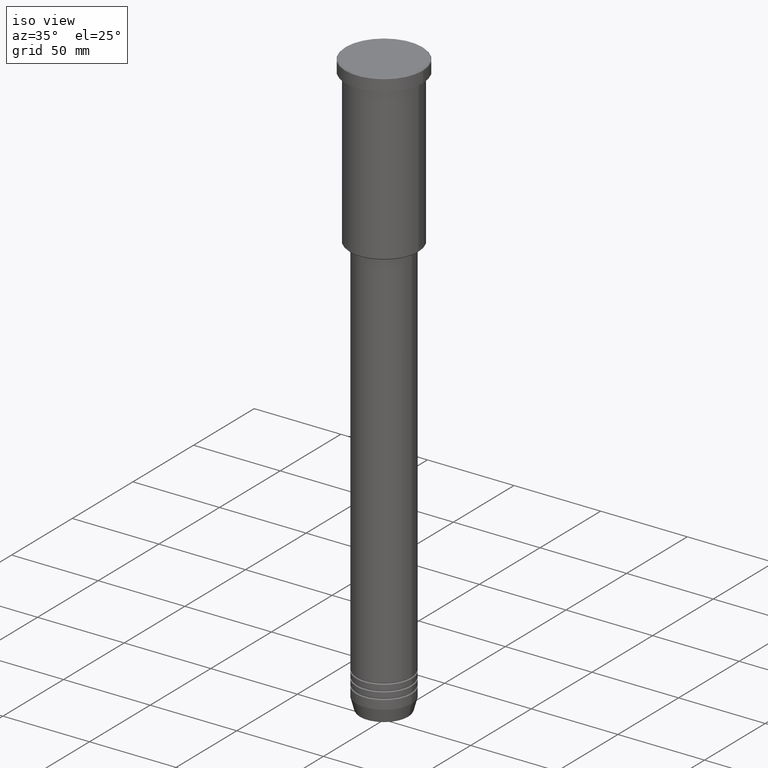
[diagram: clean part render]
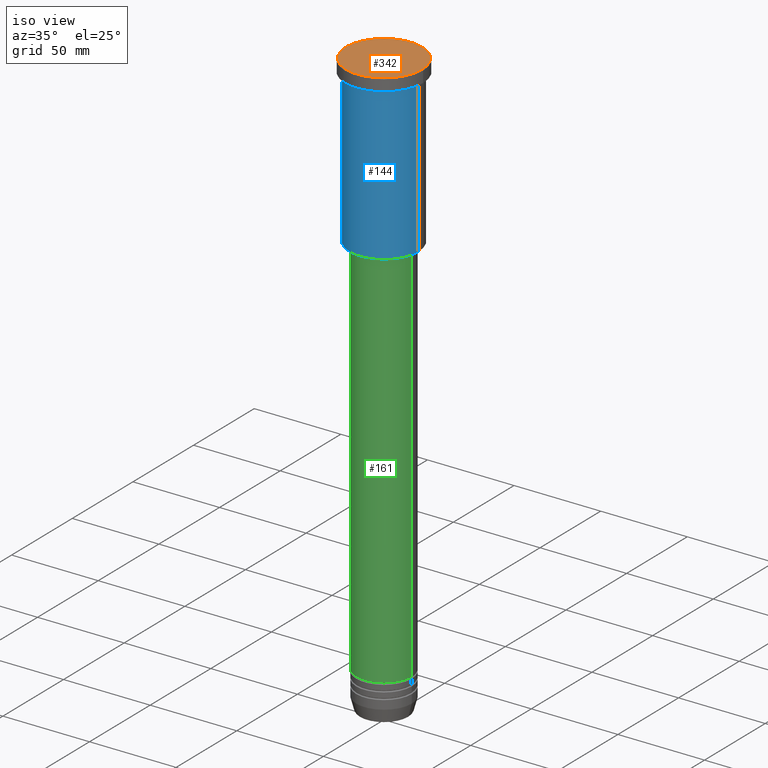
[diagram: same view with three faces highlighted in distinct colors, each labeled with its STEP entity id]
A machine part, iso view with three faces highlighted in distinct colors.
Their STEP definitions:

[orange] entity #342 — the highlighted planar face has unit normal (0, -0, 1).
#1 = DIRECTION ( 'NONE',  ( 0.000000000000000000, -0.000000000000000000, 1.000000000000000000 ) ) ;
#13 = DIRECTION ( 'NONE',  ( -0.000000000000000000, -0.000000000000000000, 1.000000000000000000 ) ) ;
#32 = VERTEX_POINT ( 'NONE', #105 ) ;
#69 = AXIS2_PLACEMENT_3D ( 'NONE', #545, #456, #292 ) ;
#105 = CARTESIAN_POINT ( 'NONE',  ( -21.99999999999996447, 0.000000000000000000, 0.000000000000000000 ) ) ;
#212 = CIRCLE ( 'NONE', #69, 21.99999999999996447 ) ;
#253 = CIRCLE ( 'NONE', #689, 21.99999999999996447 ) ;
#292 = DIRECTION ( 'NONE',  ( 1.000000000000000000, 0.000000000000000000, 0.000000000000000000 ) ) ;
#294 = DIRECTION ( 'NONE',  ( 1.000000000000000000, 0.000000000000000000, 0.000000000000000000 ) ) ;
#342 = ADVANCED_FACE ( 'NONE', ( #963 ), #362, .T. ) ;
#362 = PLANE ( 'NONE',  #547 ) ;
#373 = CARTESIAN_POINT ( 'NONE',  ( 0.000000000000000000, 0.000000000000000000, 0.000000000000000000 ) ) ;
#376 = CARTESIAN_POINT ( 'NONE',  ( 0.000000000000000000, 0.000000000000000000, 0.000000000000000000 ) ) ;
#411 = EDGE_LOOP ( 'NONE', ( #661, #950 ) ) ;
#421 = EDGE_CURVE ( 'NONE', #32, #757, #212, .T. ) ;
#456 = DIRECTION ( 'NONE',  ( -0.000000000000000000, -0.000000000000000000, 1.000000000000000000 ) ) ;
#545 = CARTESIAN_POINT ( 'NONE',  ( 0.000000000000000000, 0.000000000000000000, 0.000000000000000000 ) ) ;
#547 = AXIS2_PLACEMENT_3D ( 'NONE', #373, #1, #294 ) ;
#661 = ORIENTED_EDGE ( 'NONE', *, *, #421, .T. ) ;
#689 = AXIS2_PLACEMENT_3D ( 'NONE', #376, #13, #976 ) ;
#757 = VERTEX_POINT ( 'NONE', #1027 ) ;
#783 = EDGE_CURVE ( 'NONE', #757, #32, #253, .T. ) ;
#950 = ORIENTED_EDGE ( 'NONE', *, *, #783, .T. ) ;
#963 = FACE_OUTER_BOUND ( 'NONE', #411, .T. ) ;
#976 = DIRECTION ( 'NONE',  ( 1.000000000000000000, 0.000000000000000000, 0.000000000000000000 ) ) ;
#1027 = CARTESIAN_POINT ( 'NONE',  ( 21.99999999999996447, 2.724839128102858624E-15, 0.000000000000000000 ) ) ;

[blue] entity #144 — the highlighted cylindrical surface (partial cylindrical patch) has radius 20 mm, axis along (-0, -0, 1).
#26 = EDGE_CURVE ( 'NONE', #219, #593, #859, .T. ) ;
#51 = AXIS2_PLACEMENT_3D ( 'NONE', #733, #653, #112 ) ;
#61 = CARTESIAN_POINT ( 'NONE',  ( -20.00000000000000355, 2.449293598294706907E-15, 0.000000000000000000 ) ) ;
#112 = DIRECTION ( 'NONE',  ( 1.000000000000000000, 0.000000000000000000, 0.000000000000000000 ) ) ;
#116 = DIRECTION ( 'NONE',  ( -0.000000000000000000, -0.000000000000000000, 1.000000000000000000 ) ) ;
#123 = VERTEX_POINT ( 'NONE', #801 ) ;
#144 = ADVANCED_FACE ( 'NONE', ( #186 ), #984, .T. ) ;
#179 = ORIENTED_EDGE ( 'NONE', *, *, #861, .T. ) ;
#186 = FACE_OUTER_BOUND ( 'NONE', #331, .T. ) ;
#216 = LINE ( 'NONE', #852, #926 ) ;
#219 = VERTEX_POINT ( 'NONE', #784 ) ;
#331 = EDGE_LOOP ( 'NONE', ( #585, #179, #1016, #759 ) ) ;
#335 = AXIS2_PLACEMENT_3D ( 'NONE', #566, #1163, #1061 ) ;
#370 = DIRECTION ( 'NONE',  ( 1.000000000000000000, 0.000000000000000000, 0.000000000000000000 ) ) ;
#410 = CARTESIAN_POINT ( 'NONE',  ( 20.00000000000000000, 0.000000000000000000, -7.999999999999994671 ) ) ;
#440 = CIRCLE ( 'NONE', #335, 20.00000000000000355 ) ;
#546 = VECTOR ( 'NONE', #641, 1000.000000000000000 ) ;
#566 = CARTESIAN_POINT ( 'NONE',  ( 0.000000000000000000, 0.000000000000000000, -95.49999999999998579 ) ) ;
#578 = EDGE_CURVE ( 'NONE', #593, #677, #1168, .T. ) ;
#585 = ORIENTED_EDGE ( 'NONE', *, *, #26, .F. ) ;
#593 = VERTEX_POINT ( 'NONE', #1141 ) ;
#641 = DIRECTION ( 'NONE',  ( -0.000000000000000000, -0.000000000000000000, 1.000000000000000000 ) ) ;
#653 = DIRECTION ( 'NONE',  ( -0.000000000000000000, -0.000000000000000000, 1.000000000000000000 ) ) ;
#677 = VERTEX_POINT ( 'NONE', #410 ) ;
#710 = EDGE_CURVE ( 'NONE', #123, #677, #216, .T. ) ;
#733 = CARTESIAN_POINT ( 'NONE',  ( 0.000000000000000000, 0.000000000000000000, -7.999999999999994671 ) ) ;
#759 = ORIENTED_EDGE ( 'NONE', *, *, #578, .F. ) ;
#784 = CARTESIAN_POINT ( 'NONE',  ( -20.00000000000000355, 2.449293598294706907E-15, -95.49999999999998579 ) ) ;
#801 = CARTESIAN_POINT ( 'NONE',  ( 20.00000000000000355, 0.000000000000000000, -95.49999999999998579 ) ) ;
#852 = CARTESIAN_POINT ( 'NONE',  ( 20.00000000000000355, 0.000000000000000000, 0.000000000000000000 ) ) ;
#859 = LINE ( 'NONE', #61, #546 ) ;
#861 = EDGE_CURVE ( 'NONE', #219, #123, #440, .T. ) ;
#909 = CARTESIAN_POINT ( 'NONE',  ( 0.000000000000000000, 0.000000000000000000, 0.000000000000000000 ) ) ;
#926 = VECTOR ( 'NONE', #1126, 1000.000000000000000 ) ;
#979 = AXIS2_PLACEMENT_3D ( 'NONE', #909, #116, #370 ) ;
#984 = CYLINDRICAL_SURFACE ( 'NONE', #979, 20.00000000000000355 ) ;
#1016 = ORIENTED_EDGE ( 'NONE', *, *, #710, .T. ) ;
#1061 = DIRECTION ( 'NONE',  ( -1.000000000000000000, 0.000000000000000000, 0.000000000000000000 ) ) ;
#1126 = DIRECTION ( 'NONE',  ( -0.000000000000000000, -0.000000000000000000, 1.000000000000000000 ) ) ;
#1141 = CARTESIAN_POINT ( 'NONE',  ( -20.00000000000000000, 2.449293598294706513E-15, -7.999999999999994671 ) ) ;
#1163 = DIRECTION ( 'NONE',  ( -0.000000000000000000, -0.000000000000000000, 1.000000000000000000 ) ) ;
#1168 = CIRCLE ( 'NONE', #51, 20.00000000000000000 ) ;

[green] entity #161 — the highlighted cylindrical surface (edge-blend (fillet) strip) has radius 16 mm, axis along (-0, -0, 1).
#3 = DIRECTION ( 'NONE',  ( 1.000000000000000000, 0.000000000000000000, 0.000000000000000000 ) ) ;
#24 = LINE ( 'NONE', #221, #140 ) ;
#65 = EDGE_CURVE ( 'NONE', #716, #205, #644, .T. ) ;
#114 = CARTESIAN_POINT ( 'NONE',  ( 16.00000000000000000, 0.000000000000000000, 0.000000000000000000 ) ) ;
#134 = AXIS2_PLACEMENT_3D ( 'NONE', #670, #994, #1004 ) ;
#140 = VECTOR ( 'NONE', #414, 1000.000000000000000 ) ;
#161 = ADVANCED_FACE ( 'NONE', ( #195 ), #284, .T. ) ;
#195 = FACE_OUTER_BOUND ( 'NONE', #1111, .T. ) ;
#205 = VERTEX_POINT ( 'NONE', #1062 ) ;
#221 = CARTESIAN_POINT ( 'NONE',  ( -16.00000000000000000, 1.959434878635765131E-15, 0.000000000000000000 ) ) ;
#284 = CYLINDRICAL_SURFACE ( 'NONE', #826, 16.00000000000000000 ) ;
#355 = ORIENTED_EDGE ( 'NONE', *, *, #849, .F. ) ;
#372 = ORIENTED_EDGE ( 'NONE', *, *, #65, .T. ) ;
#399 = CARTESIAN_POINT ( 'NONE',  ( -16.00000000000000000, 1.959434878635765131E-15, -318.5000000000000000 ) ) ;
#414 = DIRECTION ( 'NONE',  ( -0.000000000000000000, -0.000000000000000000, 1.000000000000000000 ) ) ;
#481 = DIRECTION ( 'NONE',  ( 1.000000000000000000, 0.000000000000000000, 0.000000000000000000 ) ) ;
#549 = CARTESIAN_POINT ( 'NONE',  ( 0.000000000000000000, 0.000000000000000000, 0.000000000000000000 ) ) ;
#559 = DIRECTION ( 'NONE',  ( -0.000000000000000000, -0.000000000000000000, 1.000000000000000000 ) ) ;
#605 = CARTESIAN_POINT ( 'NONE',  ( -16.00000000000000000, 1.959434878635765131E-15, -96.99999999999994316 ) ) ;
#617 = ORIENTED_EDGE ( 'NONE', *, *, #630, .T. ) ;
#630 = EDGE_CURVE ( 'NONE', #205, #1170, #664, .T. ) ;
#644 = CIRCLE ( 'NONE', #134, 16.00000000000000000 ) ;
#651 = DIRECTION ( 'NONE',  ( -0.000000000000000000, -0.000000000000000000, 1.000000000000000000 ) ) ;
#664 = LINE ( 'NONE', #114, #668 ) ;
#668 = VECTOR ( 'NONE', #1000, 1000.000000000000000 ) ;
#670 = CARTESIAN_POINT ( 'NONE',  ( 0.000000000000000000, 0.000000000000000000, -318.5000000000000000 ) ) ;
#687 = VERTEX_POINT ( 'NONE', #605 ) ;
#716 = VERTEX_POINT ( 'NONE', #399 ) ;
#736 = CIRCLE ( 'NONE', #962, 16.00000000000000000 ) ;
#826 = AXIS2_PLACEMENT_3D ( 'NONE', #549, #559, #3 ) ;
#849 = EDGE_CURVE ( 'NONE', #687, #1170, #736, .T. ) ;
#864 = ORIENTED_EDGE ( 'NONE', *, *, #1092, .F. ) ;
#902 = CARTESIAN_POINT ( 'NONE',  ( 0.000000000000000000, 0.000000000000000000, -96.99999999999994316 ) ) ;
#930 = CARTESIAN_POINT ( 'NONE',  ( 16.00000000000000000, 0.000000000000000000, -96.99999999999994316 ) ) ;
#962 = AXIS2_PLACEMENT_3D ( 'NONE', #902, #651, #481 ) ;
#994 = DIRECTION ( 'NONE',  ( -0.000000000000000000, -0.000000000000000000, 1.000000000000000000 ) ) ;
#1000 = DIRECTION ( 'NONE',  ( -0.000000000000000000, -0.000000000000000000, 1.000000000000000000 ) ) ;
#1004 = DIRECTION ( 'NONE',  ( 1.000000000000000000, 0.000000000000000000, 0.000000000000000000 ) ) ;
#1062 = CARTESIAN_POINT ( 'NONE',  ( 16.00000000000000000, 0.000000000000000000, -318.5000000000000000 ) ) ;
#1092 = EDGE_CURVE ( 'NONE', #716, #687, #24, .T. ) ;
#1111 = EDGE_LOOP ( 'NONE', ( #864, #372, #617, #355 ) ) ;
#1170 = VERTEX_POINT ( 'NONE', #930 ) ;